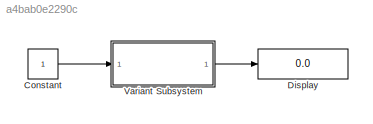
MODEL slx_a4bab0e2290c
KIND model
BLOCK [Constant] Constant
BLOCK [Display] Display
  Decimation = 1
  Ports = [1]
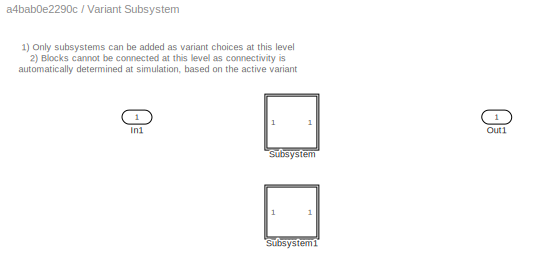
BLOCK [SubSystem] Variant Subsystem
  FunctionWithSeparateData = off
  MaskHideContents = off
  MinAlgLoopOccurrences = off
  Opaque = off
  OverrideUsingVariant = Variant1
  Ports = [1, 1]
  PropExecContextOutsideSubsystem = off
  RTWSystemCode = Auto
  RequestExecContextInheritance = off
  Variant = on
BLOCK [Inport] Variant Subsystem/In1
  IconDisplay = Port number
BLOCK [Outport] Variant Subsystem/Out1
  IconDisplay = Port number
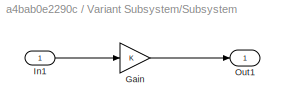
BLOCK [SubSystem] Variant Subsystem/Subsystem
  FunctionWithSeparateData = off
  MaskHideContents = off
  MinAlgLoopOccurrences = off
  Opaque = off
  Ports = [1, 1]
  PropExecContextOutsideSubsystem = off
  RTWSystemCode = Auto
  RequestExecContextInheritance = off
  VariantControl = Variant
BLOCK [Gain] Variant Subsystem/Subsystem/Gain
  OutDataTypeStr = Inherit: Inherit via internal rule
  ParamDataTypeStr = Inherit: Inherit via internal rule
  SaturateOnIntegerOverflow = off
BLOCK [Inport] Variant Subsystem/Subsystem/In1
  IconDisplay = Port number
BLOCK [Outport] Variant Subsystem/Subsystem/Out1
  IconDisplay = Port number
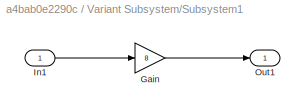
BLOCK [SubSystem] Variant Subsystem/Subsystem1
  FunctionWithSeparateData = off
  MaskHideContents = off
  MinAlgLoopOccurrences = off
  Opaque = off
  Ports = [1, 1]
  PropExecContextOutsideSubsystem = off
  RTWSystemCode = Auto
  RequestExecContextInheritance = off
  VariantControl = Variant1
BLOCK [Gain] Variant Subsystem/Subsystem1/Gain
  Gain = 8
  OutDataTypeStr = Inherit: Inherit via internal rule
  ParamDataTypeStr = Inherit: Inherit via internal rule
  SaturateOnIntegerOverflow = off
BLOCK [Inport] Variant Subsystem/Subsystem1/In1
  IconDisplay = Port number
BLOCK [Outport] Variant Subsystem/Subsystem1/Out1
  IconDisplay = Port number
ANNOTATION Variant Subsystem: 1) Only subsystems can be added as variant choices at this level 2) Blocks cannot be connected at this level as connectivity is automatically determined at simulation, based on the active variant
LINE Constant:1 -> Variant Subsystem:1
LINE Variant Subsystem/Subsystem/Gain:1 -> Variant Subsystem/Subsystem/Out1:1
LINE Variant Subsystem/Subsystem/In1:1 -> Variant Subsystem/Subsystem/Gain:1
LINE Variant Subsystem/Subsystem1/Gain:1 -> Variant Subsystem/Subsystem1/Out1:1
LINE Variant Subsystem/Subsystem1/In1:1 -> Variant Subsystem/Subsystem1/Gain:1
LINE Variant Subsystem:1 -> Display:1
